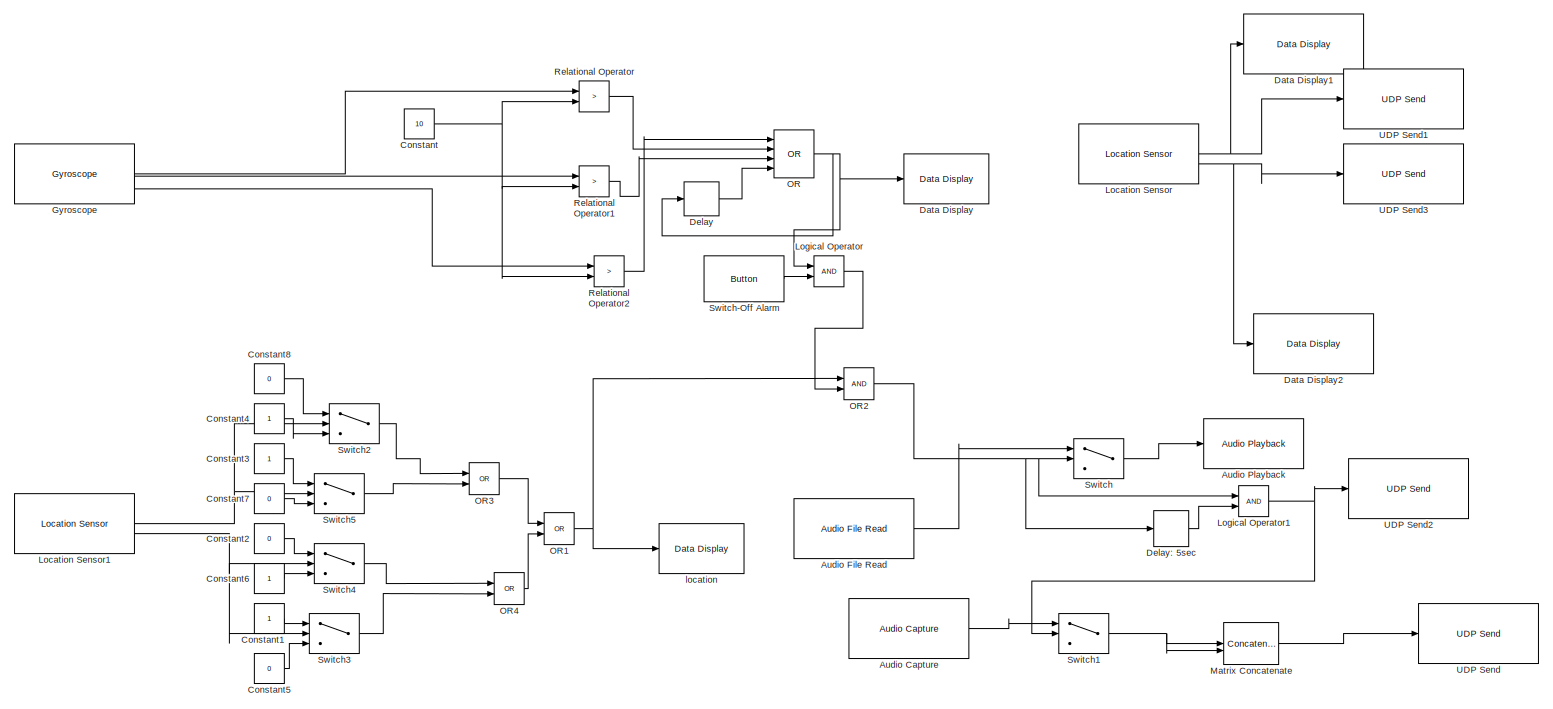
[diagram: root canvas - part 1/1, most of the canvas]
MODEL slx_8f1002347870
KIND model
CONFIG AbsTol = auto
CONFIG EnableMultiTasking = off
CONFIG FixedStep = auto
CONFIG MaxStep = auto
CONFIG MinStep = auto
CONFIG RelTol = 1e-3
CONFIG SampleTimeConstraint = Unconstrained
CONFIG SolverName = FixedStepAuto
CONFIG StartTime = 0.0
CONFIG StopTime = inf
BLOCK [Reference] Audio Capture  REF=androidaudiovideolib/Audio Capture
  SourceBlock = androidaudiovideolib/Audio Capture
  SourceType = codertarget.internal.androidAudioCapture
BLOCK [Reference] Audio File Read  REF=androidaudiovideolib/Audio File Read
  SourceBlock = androidaudiovideolib/Audio File Read
  SourceType = codertarget.internal.androidAudioFileRead
BLOCK [Reference] Audio Playback  REF=androidaudiovideolib/Audio Playback
  SourceBlock = androidaudiovideolib/Audio Playback
  SourceType = codertarget.internal.androidAudioPlayback
BLOCK [Constant] Constant
  Value = 10
BLOCK [Constant] Constant1
BLOCK [Constant] Constant2
  Value = 0
BLOCK [Constant] Constant3
BLOCK [Constant] Constant4
BLOCK [Constant] Constant5
  Value = 0
BLOCK [Constant] Constant6
BLOCK [Constant] Constant7
  Value = 0
BLOCK [Constant] Constant8
  Value = 0
BLOCK [Reference] Data Display  REF=androiduilib/Data Display
  SourceBlock = androiduilib/Data Display
  SourceType = codertarget.internal.androidDataDisplay
BLOCK [Reference] Data Display1  REF=androiduilib/Data Display
  SourceBlock = androiduilib/Data Display
  SourceType = codertarget.internal.androidDataDisplay
BLOCK [Reference] Data Display2  REF=androiduilib/Data Display
  SourceBlock = androiduilib/Data Display
  SourceType = codertarget.internal.androidDataDisplay
BLOCK [Delay] Delay
  DelayLength = 1
  InputPortMap = u0
BLOCK [Delay] Delay: 5sec
  DelayLength = 50
  InitialCondition = 0
  InputPortMap = u0
BLOCK [Reference] Gyroscope  REF=androidsensorlib/Gyroscope
  SourceBlock = androidsensorlib/Gyroscope
  SourceType = codertarget.internal.androidGyroscope
BLOCK [Reference] Location Sensor  REF=androidsensorlib/Location Sensor
  SourceBlock = androidsensorlib/Location Sensor
  SourceType = codertarget.internal.androidLocation
BLOCK [Reference] Location Sensor1  REF=androidsensorlib/Location Sensor
  SourceBlock = androidsensorlib/Location Sensor
  SourceType = codertarget.internal.androidLocation
BLOCK [Logic] Logical Operator
  AllPortsSameDT = off
  OutDataTypeStr = boolean
BLOCK [Logic] Logical Operator1
  AllPortsSameDT = off
  OutDataTypeStr = boolean
BLOCK [Concatenate] Matrix Concatenate
  ConcatenateDimension = 2
  Mode = Multidimensional array
BLOCK [Logic] OR
  AllPortsSameDT = off
  Inputs = 4
  Operator = OR
  OutDataTypeStr = boolean
BLOCK [Logic] OR1
  AllPortsSameDT = off
  IconShape = distinctive
  Operator = OR
  OutDataTypeStr = boolean
BLOCK [Logic] OR2
  AllPortsSameDT = off
  IconShape = distinctive
  OutDataTypeStr = boolean
BLOCK [Logic] OR3
  AllPortsSameDT = off
  IconShape = distinctive
  Operator = OR
  OutDataTypeStr = boolean
BLOCK [Logic] OR4
  AllPortsSameDT = off
  IconShape = distinctive
  Operator = OR
  OutDataTypeStr = boolean
BLOCK [RelationalOperator] Relational Operator
  InputSameDT = off
  Operator = >
  OutDataTypeStr = boolean
  RndMeth = Simplest
BLOCK [RelationalOperator] Relational Operator1
  InputSameDT = off
  Operator = >
  OutDataTypeStr = boolean
  RndMeth = Simplest
BLOCK [RelationalOperator] Relational Operator2
  InputSameDT = off
  Operator = >
  OutDataTypeStr = boolean
  RndMeth = Simplest
BLOCK [Switch] Switch
  Criteria = u2 > Threshold
  InputSameDT = off
  SaturateOnIntegerOverflow = off
BLOCK [Reference] Switch-Off Alarm  REF=androiduilib/Button
  SourceBlock = androiduilib/Button
  SourceType = codertarget.internal.androidButton
BLOCK [Switch] Switch1
  Criteria = u2 > Threshold
  InputSameDT = off
  SaturateOnIntegerOverflow = off
BLOCK [Switch] Switch2
  Criteria = u2 > Threshold
  InputSameDT = off
  SaturateOnIntegerOverflow = off
  Threshold = 23.209
BLOCK [Switch] Switch3
  Criteria = u2 > Threshold
  InputSameDT = off
  SaturateOnIntegerOverflow = off
  Threshold = 72.686
BLOCK [Switch] Switch4
  Criteria = u2 > Threshold
  InputSameDT = off
  SaturateOnIntegerOverflow = off
  Threshold = 72.683
BLOCK [Switch] Switch5
  InputSameDT = off
  SaturateOnIntegerOverflow = off
  Threshold = 23.21
BLOCK [Reference] UDP Send  REF=androidcommunicationlib/UDP Send
  SourceBlock = androidcommunicationlib/UDP Send
  SourceType = UDP Send
BLOCK [Reference] UDP Send1  REF=androidcommunicationlib/UDP Send
  SourceBlock = androidcommunicationlib/UDP Send
  SourceType = UDP Send
BLOCK [Reference] UDP Send2  REF=androidcommunicationlib/UDP Send
  SourceBlock = androidcommunicationlib/UDP Send
  SourceType = UDP Send
BLOCK [Reference] UDP Send3  REF=androidcommunicationlib/UDP Send
  SourceBlock = androidcommunicationlib/UDP Send
  SourceType = UDP Send
BLOCK [Reference] location  REF=androiduilib/Data Display
  SourceBlock = androiduilib/Data Display
  SourceType = codertarget.internal.androidDataDisplay
LINE Audio Capture:1 -> Switch1:1
LINE Audio File Read:1 -> Switch:1
LINE Constant1:1 -> Switch3:1
LINE Constant2:1 -> Switch4:1
LINE Constant3:1 -> Switch5:1
LINE Constant4:1 -> Switch2:3
LINE Constant5:1 -> Switch3:3
LINE Constant6:1 -> Switch4:3
LINE Constant7:1 -> Switch5:3
LINE Constant8:1 -> Switch2:1
NET Constant:1 -> Relational Operator1:2, Relational Operator2:2, Relational Operator:2
LINE Delay: 5sec:1 -> Logical Operator1:2
LINE Delay:1 -> OR:4
LINE Gyroscope:1 -> Relational Operator:1
LINE Gyroscope:2 -> Relational Operator1:1
LINE Gyroscope:3 -> Relational Operator2:1
NET Location Sensor1:1 -> Switch2:2, Switch5:2
NET Location Sensor1:2 -> Switch3:2, Switch4:2
NET Location Sensor:1 -> Data Display1:1, UDP Send1:1
NET Location Sensor:2 -> Data Display2:1, UDP Send3:1
NET Logical Operator1:1 -> Switch1:2, UDP Send2:1
LINE Logical Operator:1 -> OR2:2
LINE Matrix Concatenate:1 -> UDP Send:1
NET OR1:1 -> OR2:1, location:1
NET OR2:1 -> Delay: 5sec:1, Logical Operator1:1, Switch:2
LINE OR3:1 -> OR1:1
LINE OR4:1 -> OR1:2
NET OR:1 -> Data Display:1, Delay:1, Logical Operator:1
LINE Relational Operator1:1 -> OR:3
LINE Relational Operator2:1 -> OR:1
LINE Relational Operator:1 -> OR:2
LINE Switch-Off Alarm:1 -> Logical Operator:2
NET Switch1:1 -> Matrix Concatenate:1, Matrix Concatenate:2
LINE Switch2:1 -> OR3:1
LINE Switch3:1 -> OR4:2
LINE Switch4:1 -> OR4:1
LINE Switch5:1 -> OR3:2
LINE Switch:1 -> Audio Playback:1
note: NET lines group one-source signal fan-out (src -> all destinations, sorted); 1:1 wires keep LINE
